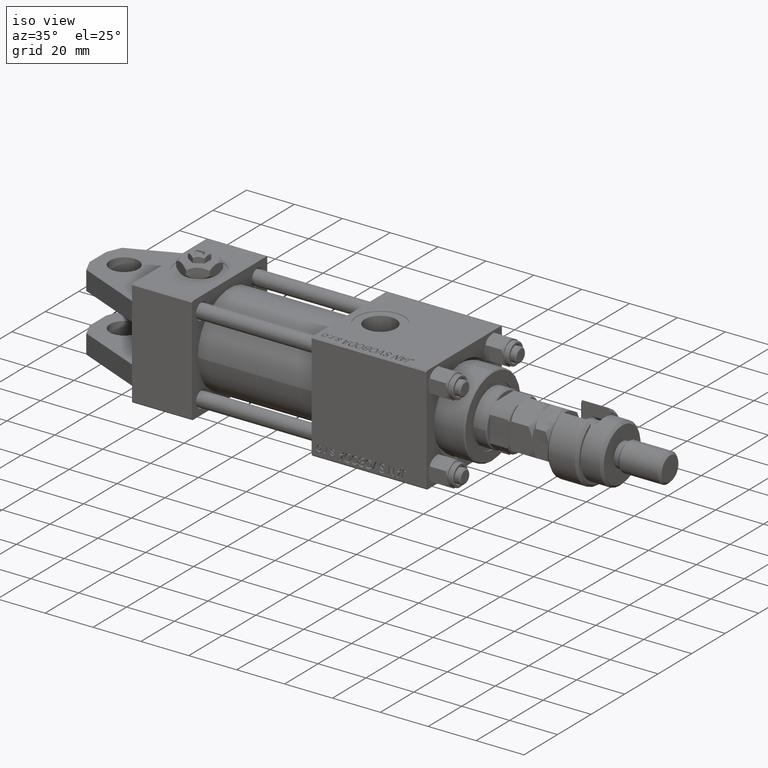
[diagram: clean part render]
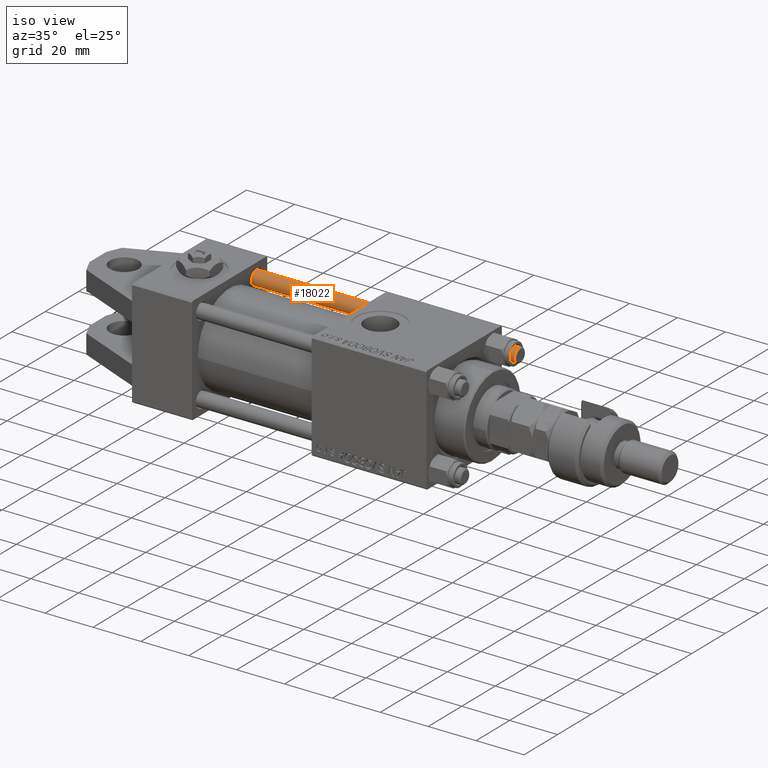
[diagram: same view with one face highlighted and labeled with its STEP entity id]
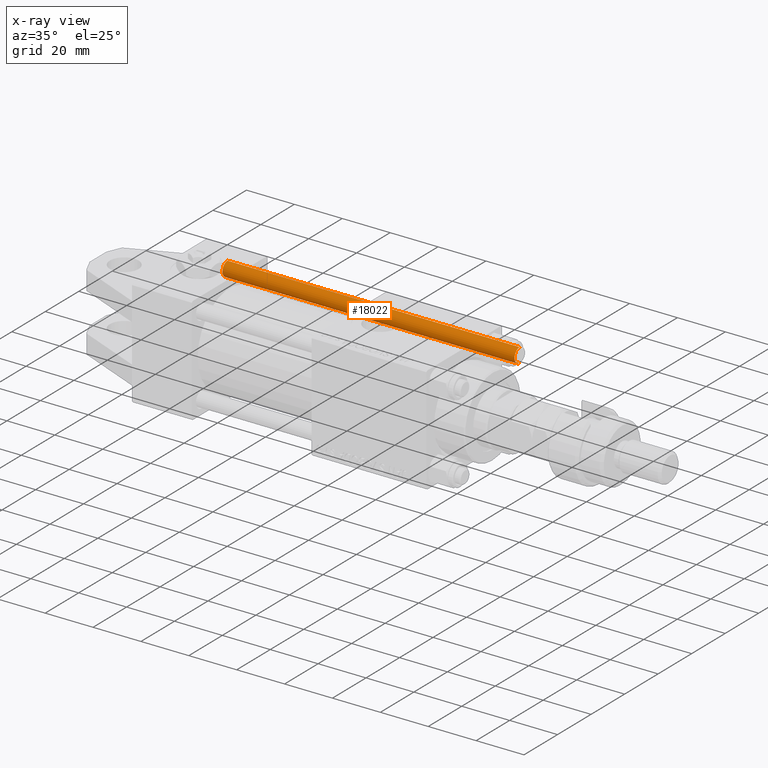
[diagram: x-ray of the same camera — body ghosted, the highlighted face saturated]
A machine part, iso view. The second image highlights one B-rep face of the part: STEP entity #18022.
The next image is the same camera in x-ray: the body ghosted, the highlighted face saturated — about 0% of this face is hidden behind the body in this view.
In plain terms, the highlighted cylindrical surface (edge-blend (fillet) strip) has radius 3 mm, axis along (-1, 0, -0).
Its self-contained STEP definition (entity closure, byte-faithful):
#183 = LINE ( 'NONE', #8179, #16161 ) ;
#1117 = DIRECTION ( 'NONE',  ( 0.000000000000000000, 0.000000000000000000, -1.000000000000000000 ) ) ;
#2138 = VECTOR ( 'NONE', #14171, 1000.000000000000000 ) ;
#2631 = FACE_OUTER_BOUND ( 'NONE', #6677, .T. ) ;
#2836 = LINE ( 'NONE', #51937, #2138 ) ;
#5090 = CARTESIAN_POINT ( 'NONE',  ( -3.000000000000000444, 0.000000000000000000, 0.5000000000000004441 ) ) ;
#5180 = CARTESIAN_POINT ( 'NONE',  ( 0.000000000000000000, 0.000000000000000000, 0.5000000000000004441 ) ) ;
#5431 = CIRCLE ( 'NONE', #16846, 3.000000000000000444 ) ;
#6109 = ORIENTED_EDGE ( 'NONE', *, *, #33373, .T. ) ;
#6677 = EDGE_LOOP ( 'NONE', ( #8195, #43569, #6109, #50160 ) ) ;
#6775 = DIRECTION ( 'NONE',  ( -1.000000000000000000, 0.000000000000000000, 0.000000000000000000 ) ) ;
#8120 = VERTEX_POINT ( 'NONE', #27186 ) ;
#8179 = CARTESIAN_POINT ( 'NONE',  ( 3.000000000000000444, 3.673940397442060361E-16, 123.0000000000000000 ) ) ;
#8195 = ORIENTED_EDGE ( 'NONE', *, *, #29085, .F. ) ;
#10927 = VERTEX_POINT ( 'NONE', #5090 ) ;
#14171 = DIRECTION ( 'NONE',  ( -0.000000000000000000, -0.000000000000000000, -1.000000000000000000 ) ) ;
#14776 = DIRECTION ( 'NONE',  ( -0.000000000000000000, -0.000000000000000000, -1.000000000000000000 ) ) ;
#16161 = VECTOR ( 'NONE', #50607, 1000.000000000000000 ) ;
#16846 = AXIS2_PLACEMENT_3D ( 'NONE', #30906, #1117, #35032 ) ;
#17865 = AXIS2_PLACEMENT_3D ( 'NONE', #5180, #21733, #39359 ) ;
#18022 = ADVANCED_FACE ( 'NONE', ( #2631 ), #18923, .T. ) ;
#18923 = CYLINDRICAL_SURFACE ( 'NONE', #39663, 3.000000000000000444 ) ;
#21733 = DIRECTION ( 'NONE',  ( -0.000000000000000000, -0.000000000000000000, 1.000000000000000000 ) ) ;
#22507 = VERTEX_POINT ( 'NONE', #24414 ) ;
#24169 = EDGE_CURVE ( 'NONE', #8120, #22507, #5431, .T. ) ;
#24414 = CARTESIAN_POINT ( 'NONE',  ( -3.000000000000000444, 0.000000000000000000, 122.4999999999999858 ) ) ;
#25314 = CARTESIAN_POINT ( 'NONE',  ( 3.000000000000000444, 3.673940397442060361E-16, 0.5000000000000004441 ) ) ;
#27049 = EDGE_CURVE ( 'NONE', #10927, #29753, #43376, .T. ) ;
#27186 = CARTESIAN_POINT ( 'NONE',  ( 3.000000000000000444, 3.673940397442060361E-16, 122.4999999999999858 ) ) ;
#29085 = EDGE_CURVE ( 'NONE', #8120, #29753, #183, .T. ) ;
#29753 = VERTEX_POINT ( 'NONE', #25314 ) ;
#30906 = CARTESIAN_POINT ( 'NONE',  ( 0.000000000000000000, 0.000000000000000000, 122.4999999999999858 ) ) ;
#33373 = EDGE_CURVE ( 'NONE', #22507, #10927, #2836, .T. ) ;
#34463 = CARTESIAN_POINT ( 'NONE',  ( 0.000000000000000000, 0.000000000000000000, 123.0000000000000000 ) ) ;
#35032 = DIRECTION ( 'NONE',  ( 1.000000000000000000, 0.000000000000000000, 0.000000000000000000 ) ) ;
#39359 = DIRECTION ( 'NONE',  ( 1.000000000000000000, 0.000000000000000000, 0.000000000000000000 ) ) ;
#39663 = AXIS2_PLACEMENT_3D ( 'NONE', #34463, #14776, #6775 ) ;
#43376 = CIRCLE ( 'NONE', #17865, 3.000000000000000444 ) ;
#43569 = ORIENTED_EDGE ( 'NONE', *, *, #24169, .T. ) ;
#50160 = ORIENTED_EDGE ( 'NONE', *, *, #27049, .T. ) ;
#50607 = DIRECTION ( 'NONE',  ( -0.000000000000000000, -0.000000000000000000, -1.000000000000000000 ) ) ;
#51937 = CARTESIAN_POINT ( 'NONE',  ( -3.000000000000000444, 0.000000000000000000, 123.0000000000000000 ) ) ;